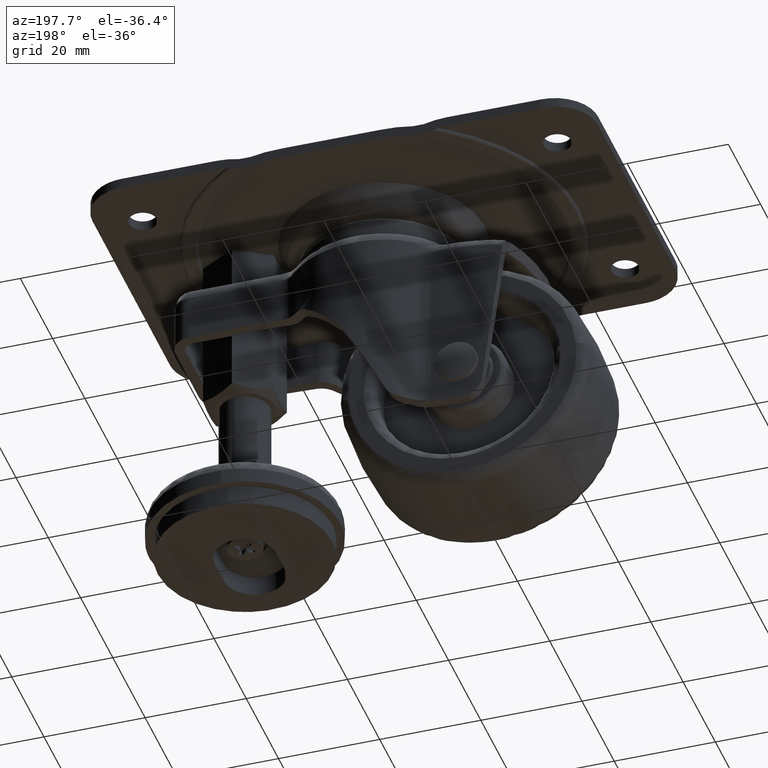
[diagram: clean part render]
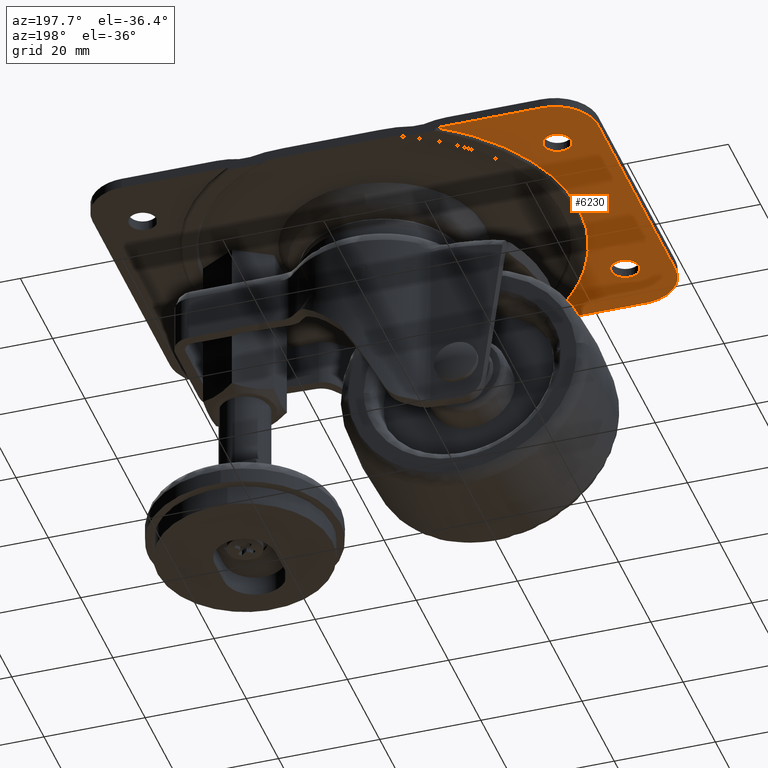
[diagram: same view with one face highlighted and labeled with its STEP entity id]
A machine part, auxiliary view. The second image highlights one B-rep face of the part: STEP entity #6230.
In plain terms, the highlighted face is a freeform B-spline surface patch.
Its self-contained STEP definition (entity closure, byte-faithful):
#3443=CARTESIAN_POINT('',(-40.832116516070229,23.744870695647361,-2.0));
#3444=VERTEX_POINT('',#3443);
#3450=CARTESIAN_POINT('',(-38.250000000000000,21.0,-2.0));
#3451=VERTEX_POINT('',#3450);
#3452=CARTESIAN_POINT('',(-38.250000000000000,21.0,-2.0));
#3453=CARTESIAN_POINT('',(-38.250000000000007,23.586941683596155,-2.000000000000000));
#3454=CARTESIAN_POINT('',(-40.832116516070229,23.744870695647357,-2.000000000000000));
#3462=(BOUNDED_CURVE()B_SPLINE_CURVE(2,(#3452,#3453,#3454),.UNSPECIFIED.,.F.,.U.)B_SPLINE_CURVE_WITH_KNOTS((3,3),(0.500000000000000,0.739332962215704),.UNSPECIFIED.)CURVE()GEOMETRIC_REPRESENTATION_ITEM()RATIONAL_B_SPLINE_CURVE((1.0,0.719603993313937,0.976072041616912))REPRESENTATION_ITEM(''));
#3463=EDGE_CURVE('',#3451,#3444,#3462,.T.);
#3465=CARTESIAN_POINT('',(-41.324594145573691,18.269223802531730,-2.0));
#3466=VERTEX_POINT('',#3465);
#3467=CARTESIAN_POINT('',(-41.324594145573698,18.269223802531727,-2.000000000000000));
#3468=CARTESIAN_POINT('',(-41.162866329313189,18.250000000000007,-2.000000000000000));
#3469=CARTESIAN_POINT('',(-41.0,18.250000000000000,-2.0));
#3470=CARTESIAN_POINT('',(-38.250000000000007,18.250000000000011,-2.000000000000000));
#3471=CARTESIAN_POINT('',(-38.250000000000000,21.0,-2.0));
#3479=(BOUNDED_CURVE()B_SPLINE_CURVE(2,(#3467,#3468,#3469,#3470,#3471),.UNSPECIFIED.,.F.,.U.)B_SPLINE_CURVE_WITH_KNOTS((3,2,3),(0.229562473482521,0.250000000000000,0.500000000000000),.UNSPECIFIED.)CURVE()GEOMETRIC_REPRESENTATION_ITEM()RATIONAL_B_SPLINE_CURVE((0.956026754122962,0.976055948294841,1.0,0.707106781186548,1.0))REPRESENTATION_ITEM(''));
#3480=EDGE_CURVE('',#3466,#3451,#3479,.T.);
#3524=CARTESIAN_POINT('',(-43.750000000000007,21.0,-2.0));
#3525=VERTEX_POINT('',#3524);
#3526=CARTESIAN_POINT('',(-43.750000000000007,21.0,-2.0));
#3527=CARTESIAN_POINT('',(-43.750000000000014,18.557520054115820,-1.999999999999999));
#3528=CARTESIAN_POINT('',(-41.324594145573698,18.269223802531727,-2.000000000000000));
#3536=(BOUNDED_CURVE()B_SPLINE_CURVE(2,(#3526,#3527,#3528),.UNSPECIFIED.,.F.,.U.)B_SPLINE_CURVE_WITH_KNOTS((3,3),(0.0,0.229562473482521),.UNSPECIFIED.)CURVE()GEOMETRIC_REPRESENTATION_ITEM()RATIONAL_B_SPLINE_CURVE((1.0,0.731050832891707,0.956026754122962))REPRESENTATION_ITEM(''));
#3537=EDGE_CURVE('',#3525,#3466,#3536,.T.);
#3539=CARTESIAN_POINT('',(-40.832116516070236,23.744870695647357,-2.000000000000000));
#3540=CARTESIAN_POINT('',(-40.915979900719378,23.750000000000000,-2.000000000000000));
#3541=CARTESIAN_POINT('',(-41.0,23.750000000000000,-2.0));
#3542=CARTESIAN_POINT('',(-43.750000000000007,23.750000000000011,-2.000000000000000));
#3543=CARTESIAN_POINT('',(-43.750000000000007,21.0,-2.0));
#3551=(BOUNDED_CURVE()B_SPLINE_CURVE(2,(#3539,#3540,#3541,#3542,#3543),.UNSPECIFIED.,.F.,.U.)B_SPLINE_CURVE_WITH_KNOTS((3,2,3),(0.739332962215703,0.750000000000000,1.0),.UNSPECIFIED.)CURVE()GEOMETRIC_REPRESENTATION_ITEM()RATIONAL_B_SPLINE_CURVE((0.976072041616910,0.987502787872610,1.0,0.707106781186548,1.0))REPRESENTATION_ITEM(''));
#3552=EDGE_CURVE('',#3444,#3525,#3551,.T.);
#4001=CARTESIAN_POINT('',(-40.832116516070229,-18.255129304352639,-2.0));
#4002=VERTEX_POINT('',#4001);
#4008=CARTESIAN_POINT('',(-38.250000000000000,-21.0,-2.0));
#4009=VERTEX_POINT('',#4008);
#4010=CARTESIAN_POINT('',(-38.250000000000000,-21.0,-2.0));
#4011=CARTESIAN_POINT('',(-38.250000000000007,-18.413058316403863,-2.000000000000000));
#4012=CARTESIAN_POINT('',(-40.832116516070229,-18.255129304352646,-2.000000000000000));
#4020=(BOUNDED_CURVE()B_SPLINE_CURVE(2,(#4010,#4011,#4012),.UNSPECIFIED.,.F.,.U.)B_SPLINE_CURVE_WITH_KNOTS((3,3),(0.500000000000000,0.739332962215704),.UNSPECIFIED.)CURVE()GEOMETRIC_REPRESENTATION_ITEM()RATIONAL_B_SPLINE_CURVE((1.0,0.719603993313937,0.976072041616912))REPRESENTATION_ITEM(''));
#4021=EDGE_CURVE('',#4009,#4002,#4020,.T.);
#4023=CARTESIAN_POINT('',(-41.324594145573691,-23.730776197468270,-2.0));
#4024=VERTEX_POINT('',#4023);
#4025=CARTESIAN_POINT('',(-41.324594145573691,-23.730776197468270,-2.000000000000000));
#4026=CARTESIAN_POINT('',(-41.162866329313189,-23.750000000000004,-2.000000000000000));
#4027=CARTESIAN_POINT('',(-41.0,-23.750000000000000,-2.0));
#4028=CARTESIAN_POINT('',(-38.250000000000007,-23.750000000000011,-2.000000000000000));
#4029=CARTESIAN_POINT('',(-38.250000000000000,-21.0,-2.0));
#4037=(BOUNDED_CURVE()B_SPLINE_CURVE(2,(#4025,#4026,#4027,#4028,#4029),.UNSPECIFIED.,.F.,.U.)B_SPLINE_CURVE_WITH_KNOTS((3,2,3),(0.229562473482521,0.250000000000000,0.500000000000000),.UNSPECIFIED.)CURVE()GEOMETRIC_REPRESENTATION_ITEM()RATIONAL_B_SPLINE_CURVE((0.956026754122962,0.976055948294841,1.0,0.707106781186548,1.0))REPRESENTATION_ITEM(''));
#4038=EDGE_CURVE('',#4024,#4009,#4037,.T.);
#4082=CARTESIAN_POINT('',(-43.750000000000007,-21.0,-2.0));
#4083=VERTEX_POINT('',#4082);
#4084=CARTESIAN_POINT('',(-43.750000000000007,-21.0,-2.0));
#4085=CARTESIAN_POINT('',(-43.750000000000007,-23.442479945884187,-2.000000000000000));
#4086=CARTESIAN_POINT('',(-41.324594145573698,-23.730776197468270,-2.000000000000000));
#4094=(BOUNDED_CURVE()B_SPLINE_CURVE(2,(#4084,#4085,#4086),.UNSPECIFIED.,.F.,.U.)B_SPLINE_CURVE_WITH_KNOTS((3,3),(0.0,0.229562473482521),.UNSPECIFIED.)CURVE()GEOMETRIC_REPRESENTATION_ITEM()RATIONAL_B_SPLINE_CURVE((1.0,0.731050832891707,0.956026754122962))REPRESENTATION_ITEM(''));
#4095=EDGE_CURVE('',#4083,#4024,#4094,.T.);
#4097=CARTESIAN_POINT('',(-40.832116516070236,-18.255129304352643,-2.000000000000000));
#4098=CARTESIAN_POINT('',(-40.915979900719378,-18.250000000000007,-2.000000000000000));
#4099=CARTESIAN_POINT('',(-41.0,-18.250000000000000,-2.0));
#4100=CARTESIAN_POINT('',(-43.750000000000007,-18.250000000000011,-2.000000000000000));
#4101=CARTESIAN_POINT('',(-43.750000000000007,-21.0,-2.0));
#4109=(BOUNDED_CURVE()B_SPLINE_CURVE(2,(#4097,#4098,#4099,#4100,#4101),.UNSPECIFIED.,.F.,.U.)B_SPLINE_CURVE_WITH_KNOTS((3,2,3),(0.739332962215703,0.750000000000000,1.0),.UNSPECIFIED.)CURVE()GEOMETRIC_REPRESENTATION_ITEM()RATIONAL_B_SPLINE_CURVE((0.976072041616910,0.987502787872610,1.0,0.707106781186548,1.0))REPRESENTATION_ITEM(''));
#4110=EDGE_CURVE('',#4002,#4083,#4109,.T.);
#5684=CARTESIAN_POINT('',(-50.0,-24.0,-2.0));
#5685=VERTEX_POINT('',#5684);
#5691=CARTESIAN_POINT('',(-41.500000000000000,-32.500000000000000,-2.0));
#5692=VERTEX_POINT('',#5691);
#5693=CARTESIAN_POINT('',(-50.0,-24.0,-2.0));
#5694=CARTESIAN_POINT('',(-50.0,-32.500000000000007,-2.000000000000000));
#5695=CARTESIAN_POINT('',(-41.500000000000000,-32.500000000000000,-2.0));
#5703=(BOUNDED_CURVE()B_SPLINE_CURVE(2,(#5693,#5694,#5695),.UNSPECIFIED.,.F.,.U.)CURVE()GEOMETRIC_REPRESENTATION_ITEM()QUASI_UNIFORM_CURVE()RATIONAL_B_SPLINE_CURVE((1.0,0.707106781186548,1.0))REPRESENTATION_ITEM(''));
#5704=EDGE_CURVE('',#5685,#5692,#5703,.T.);
#5726=CARTESIAN_POINT('',(-50.0,24.0,-2.0));
#5727=VERTEX_POINT('',#5726);
#5733=CARTESIAN_POINT('',(-50.0,24.0,-2.0));
#5734=CARTESIAN_POINT('',(-50.0,-24.0,-2.0));
#5735=QUASI_UNIFORM_CURVE('',1,(#5733,#5734),.UNSPECIFIED.,.F.,.U.);
#5736=EDGE_CURVE('',#5727,#5685,#5735,.T.);
#5771=CARTESIAN_POINT('',(-41.500000000000000,32.500000000000000,-2.0));
#5772=VERTEX_POINT('',#5771);
#5778=CARTESIAN_POINT('',(-41.500000000000000,32.500000000000000,-2.0));
#5779=CARTESIAN_POINT('',(-50.0,32.500000000000007,-2.000000000000000));
#5780=CARTESIAN_POINT('',(-50.0,24.0,-2.0));
#5788=(BOUNDED_CURVE()B_SPLINE_CURVE(2,(#5778,#5779,#5780),.UNSPECIFIED.,.F.,.U.)CURVE()GEOMETRIC_REPRESENTATION_ITEM()QUASI_UNIFORM_CURVE()RATIONAL_B_SPLINE_CURVE((1.0,0.707106781186548,1.0))REPRESENTATION_ITEM(''));
#5789=EDGE_CURVE('',#5772,#5727,#5788,.T.);
#5953=CARTESIAN_POINT('',(-20.639213335955851,-32.500000000000000,-2.000000000140390));
#5954=VERTEX_POINT('',#5953);
#5955=CARTESIAN_POINT('',(-41.500000000000000,-32.500000000000000,-2.0));
#5956=CARTESIAN_POINT('',(-20.639213335955851,-32.500000000000000,-2.000000000140390));
#5957=QUASI_UNIFORM_CURVE('',1,(#5955,#5956),.UNSPECIFIED.,.F.,.U.);
#5958=EDGE_CURVE('',#5692,#5954,#5957,.T.);
#6118=CARTESIAN_POINT('',(-20.639213335955851,32.500000000000000,-2.0));
#6119=VERTEX_POINT('',#6118);
#6149=CARTESIAN_POINT('',(-20.639213335955851,32.500000000000000,-2.0));
#6150=CARTESIAN_POINT('',(-41.500000000000000,32.500000000000000,-2.0));
#6151=QUASI_UNIFORM_CURVE('',1,(#6149,#6150),.UNSPECIFIED.,.F.,.U.);
#6152=EDGE_CURVE('',#6119,#5772,#6151,.T.);
#6191=CARTESIAN_POINT('',(-51.466571236962103,35.746749874017382,-2.0));
#6192=CARTESIAN_POINT('',(-19.172641311476081,35.746749874017382,-2.0));
#6193=CARTESIAN_POINT('',(-51.466571236962103,-35.746751617453242,-2.0));
#6194=CARTESIAN_POINT('',(-19.172641311476081,-35.746751617453242,-2.0));
#6195=B_SPLINE_SURFACE_WITH_KNOTS('',1,1,((#6191,#6193),(#6192,#6194)),.UNSPECIFIED.,.F.,.F.,.U.,(2,2),(2,2),(0.0,32.293929925486012),(0.0,71.493501491470624),.UNSPECIFIED.);
#6196=CARTESIAN_POINT('',(-20.639213335955851,-32.500000000000000,-2.000000000140390));
#6197=CARTESIAN_POINT('',(-38.499702948556610,-21.157647526181854,-2.0));
#6198=CARTESIAN_POINT('',(-38.499702948556603,0.0,-2.0));
#6199=CARTESIAN_POINT('',(-38.499702948556610,21.157647526181830,-2.0));
#6200=CARTESIAN_POINT('',(-20.639213335955858,32.500000000000000,-2.0));
#6208=(BOUNDED_CURVE()B_SPLINE_CURVE(2,(#6196,#6197,#6198,#6199,#6200),.UNSPECIFIED.,.F.,.U.)B_SPLINE_CURVE_WITH_KNOTS((3,2,3),(0.0,0.500000000000000,1.0),.UNSPECIFIED.)CURVE()GEOMETRIC_REPRESENTATION_ITEM()RATIONAL_B_SPLINE_CURVE((1.0,0.876381081356965,1.0,0.876381081356965,1.0))REPRESENTATION_ITEM(''));
#6209=EDGE_CURVE('',#5954,#6119,#6208,.T.);
#6210=ORIENTED_EDGE('',*,*,#6209,.F.);
#6211=ORIENTED_EDGE('',*,*,#5958,.F.);
#6212=ORIENTED_EDGE('',*,*,#5704,.F.);
#6213=ORIENTED_EDGE('',*,*,#5736,.F.);
#6214=ORIENTED_EDGE('',*,*,#5789,.F.);
#6215=ORIENTED_EDGE('',*,*,#6152,.F.);
#6216=EDGE_LOOP('',(#6210,#6211,#6212,#6213,#6214,#6215));
#6217=FACE_OUTER_BOUND('',#6216,.T.);
#6218=ORIENTED_EDGE('',*,*,#4021,.T.);
#6219=ORIENTED_EDGE('',*,*,#4110,.T.);
#6220=ORIENTED_EDGE('',*,*,#4095,.T.);
#6221=ORIENTED_EDGE('',*,*,#4038,.T.);
#6222=EDGE_LOOP('',(#6218,#6219,#6220,#6221));
#6223=FACE_BOUND('',#6222,.T.);
#6224=ORIENTED_EDGE('',*,*,#3463,.T.);
#6225=ORIENTED_EDGE('',*,*,#3552,.T.);
#6226=ORIENTED_EDGE('',*,*,#3537,.T.);
#6227=ORIENTED_EDGE('',*,*,#3480,.T.);
#6228=EDGE_LOOP('',(#6224,#6225,#6226,#6227));
#6229=FACE_BOUND('',#6228,.T.);
#6230=ADVANCED_FACE('',(#6217,#6223,#6229),#6195,.T.);